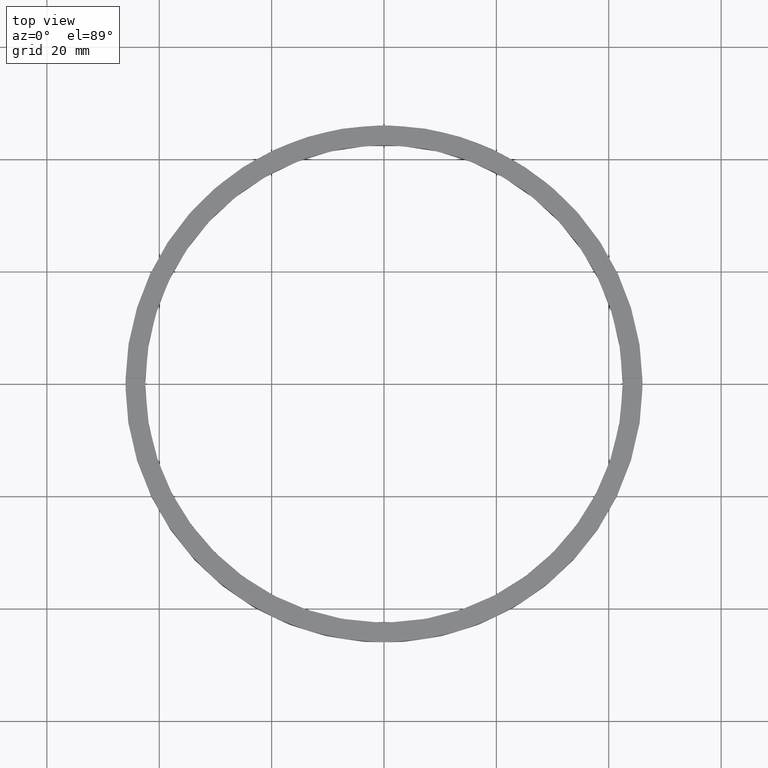
[diagram: clean part render]
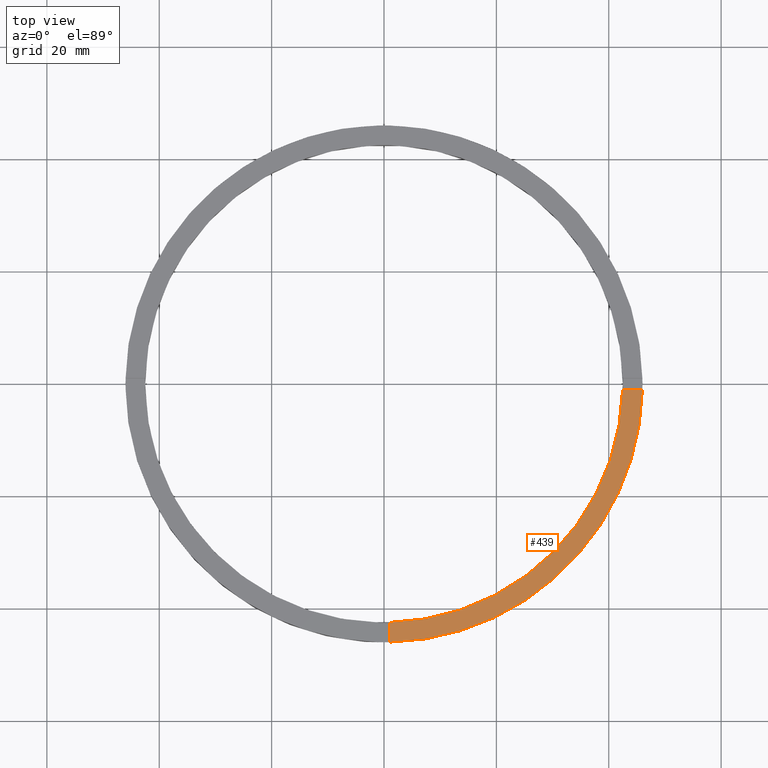
[diagram: same view with one face highlighted and labeled with its STEP entity id]
A machine part, top view. The second image highlights one B-rep face of the part: STEP entity #439.
In plain terms, the highlighted planar face has unit normal (0, 0, 1).
Its self-contained STEP definition (entity closure, byte-faithful):
#36 = VERTEX_POINT ( 'NONE', #619 ) ;
#40 = ORIENTED_EDGE ( 'NONE', *, *, #358, .T. ) ;
#96 = EDGE_CURVE ( 'NONE', #295, #36, #179, .T. ) ;
#111 = DIRECTION ( 'NONE',  ( 0.000000000000000000, 0.000000000000000000, 1.000000000000000000 ) ) ;
#133 = CARTESIAN_POINT ( 'NONE',  ( 0.9999999999998421263, -45.98912915026767934, 4.500000000000000000 ) ) ;
#137 = PLANE ( 'NONE',  #270 ) ;
#179 = CIRCLE ( 'NONE', #668, 42.50000000000000711 ) ;
#180 = DIRECTION ( 'NONE',  ( 0.000000000000000000, 0.000000000000000000, 1.000000000000000000 ) ) ;
#181 = EDGE_LOOP ( 'NONE', ( #440, #559, #730, #40 ) ) ;
#193 = VERTEX_POINT ( 'NONE', #133 ) ;
#246 = VECTOR ( 'NONE', #531, 1000.000000000000000 ) ;
#270 = AXIS2_PLACEMENT_3D ( 'NONE', #646, #623, #672 ) ;
#288 = CARTESIAN_POINT ( 'NONE',  ( 45.98912915026767223, -1.000000000000155875, 4.500000000000000000 ) ) ;
#295 = VERTEX_POINT ( 'NONE', #308 ) ;
#308 = CARTESIAN_POINT ( 'NONE',  ( 0.9999999999998414602, -42.48823366533375889, 4.500000000000000000 ) ) ;
#318 = DIRECTION ( 'NONE',  ( 1.000000000000000000, 0.000000000000000000, 0.000000000000000000 ) ) ;
#353 = AXIS2_PLACEMENT_3D ( 'NONE', #368, #180, #420 ) ;
#358 = EDGE_CURVE ( 'NONE', #193, #471, #636, .T. ) ;
#368 = CARTESIAN_POINT ( 'NONE',  ( 0.000000000000000000, 0.000000000000000000, 4.500000000000000000 ) ) ;
#384 = FACE_OUTER_BOUND ( 'NONE', #181, .T. ) ;
#391 = LINE ( 'NONE', #688, #640 ) ;
#403 = DIRECTION ( 'NONE',  ( -1.301042606982605074E-16, 1.000000000000000000, -0.000000000000000000 ) ) ;
#420 = DIRECTION ( 'NONE',  ( 1.000000000000000000, 0.000000000000000000, 0.000000000000000000 ) ) ;
#436 = CARTESIAN_POINT ( 'NONE',  ( 35.99999999999999289, -1.000000000000156541, 4.500000000000000000 ) ) ;
#439 = ADVANCED_FACE ( 'NONE', ( #384 ), #137, .T. ) ;
#440 = ORIENTED_EDGE ( 'NONE', *, *, #564, .F. ) ;
#471 = VERTEX_POINT ( 'NONE', #288 ) ;
#476 = EDGE_CURVE ( 'NONE', #193, #295, #391, .T. ) ;
#522 = LINE ( 'NONE', #436, #246 ) ;
#531 = DIRECTION ( 'NONE',  ( 1.000000000000000000, 6.505213034913025371E-17, 0.000000000000000000 ) ) ;
#559 = ORIENTED_EDGE ( 'NONE', *, *, #96, .F. ) ;
#564 = EDGE_CURVE ( 'NONE', #36, #471, #522, .T. ) ;
#619 = CARTESIAN_POINT ( 'NONE',  ( 42.48823366533375179, -1.000000000000156097, 4.500000000000000000 ) ) ;
#623 = DIRECTION ( 'NONE',  ( 0.000000000000000000, 0.000000000000000000, 1.000000000000000000 ) ) ;
#636 = CIRCLE ( 'NONE', #353, 46.00000000000000000 ) ;
#640 = VECTOR ( 'NONE', #403, 1000.000000000000000 ) ;
#646 = CARTESIAN_POINT ( 'NONE',  ( 0.000000000000000000, 0.000000000000000000, 4.500000000000000000 ) ) ;
#657 = CARTESIAN_POINT ( 'NONE',  ( 0.000000000000000000, 0.000000000000000000, 4.500000000000000000 ) ) ;
#668 = AXIS2_PLACEMENT_3D ( 'NONE', #657, #111, #318 ) ;
#672 = DIRECTION ( 'NONE',  ( 1.000000000000000000, 0.000000000000000000, -0.000000000000000000 ) ) ;
#688 = CARTESIAN_POINT ( 'NONE',  ( 0.9999999999998409050, -36.00000000000017764, 4.500000000000000000 ) ) ;
#730 = ORIENTED_EDGE ( 'NONE', *, *, #476, .F. ) ;